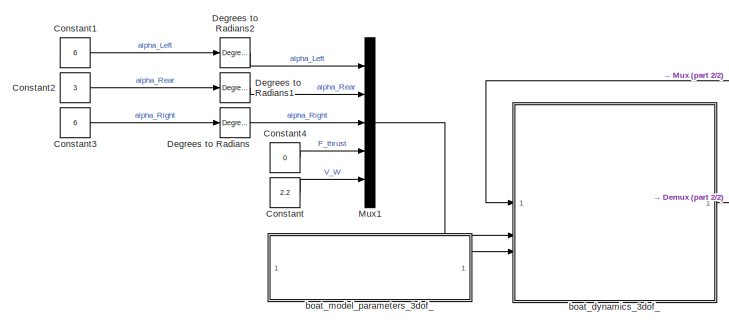
[diagram: root canvas - part 1/2, top left region]
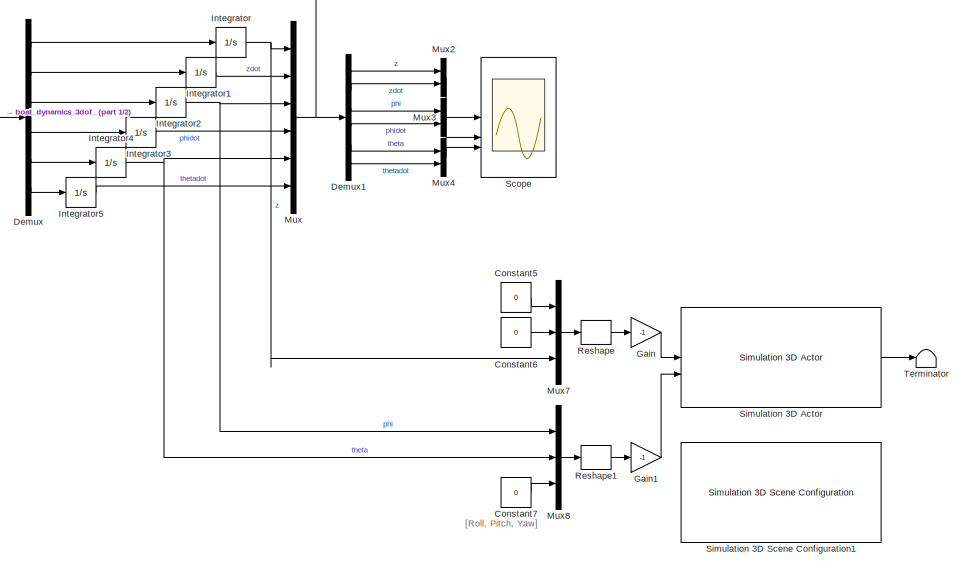
[diagram: root canvas - part 2/2, right side, full height]
MODEL slx_51006d4221be
KIND model
CONFIG AbsTol = auto
CONFIG EnableMultiTasking = off
CONFIG FixedStep = 1e-3
CONFIG MaxStep = auto
CONFIG MinStep = auto
CONFIG RelTol = 1e-3
CONFIG SampleTimeConstraint = Unconstrained
CONFIG SolverName = ode4
CONFIG StartTime = 0.0
CONFIG StopTime = 10
BLOCK [Constant] Constant
  Value = 2.2
BLOCK [Constant] Constant1
  Value = 6
BLOCK [Constant] Constant2
  Value = 3
BLOCK [Constant] Constant3
  Value = 6
BLOCK [Constant] Constant4
  Value = 0
BLOCK [Constant] Constant5
  Value = 0
BLOCK [Constant] Constant6
  Value = 0
BLOCK [Constant] Constant7
  Value = 0
BLOCK [Reference] Degrees to Radians  REF=simulink_extras/Transformations/Degrees to
Radians
  SourceBlock = simulink_extras/Transformations/Degrees to\nRadians
  SourceType = DegreesToRadians
BLOCK [Reference] Degrees to Radians1  REF=simulink_extras/Transformations/Degrees to
Radians
  SourceBlock = simulink_extras/Transformations/Degrees to\nRadians
  SourceType = DegreesToRadians
BLOCK [Reference] Degrees to Radians2  REF=simulink_extras/Transformations/Degrees to
Radians
  SourceBlock = simulink_extras/Transformations/Degrees to\nRadians
  SourceType = DegreesToRadians
BLOCK [Demux] Demux
  Outputs = 6
BLOCK [Demux] Demux1
  Outputs = 6
BLOCK [Gain] Gain
  Gain = -1
BLOCK [Gain] Gain1
  Gain = -1
BLOCK [Integrator] Integrator
BLOCK [Integrator] Integrator1
BLOCK [Integrator] Integrator2
BLOCK [Integrator] Integrator3
BLOCK [Integrator] Integrator4
BLOCK [Integrator] Integrator5
BLOCK [Mux] Mux
  DisplayOption = bar
  Inputs = 6
BLOCK [Mux] Mux1
  DisplayOption = bar
  Inputs = 5
BLOCK [Mux] Mux2
  DisplayOption = bar
  Inputs = 2
BLOCK [Mux] Mux3
  DisplayOption = bar
  Inputs = 2
BLOCK [Mux] Mux4
  DisplayOption = bar
  Inputs = 2
BLOCK [Mux] Mux7
  DisplayOption = bar
  Inputs = 3
BLOCK [Mux] Mux8
  DisplayOption = bar
  Inputs = 3
BLOCK [Reshape] Reshape
  OutputDimensionality = Row vector (2-D)
BLOCK [Reshape] Reshape1
  OutputDimensionality = Row vector (2-D)
BLOCK [Scope] Scope
  ActiveDisplayYMaximum = 2.75221448061251
  ActiveDisplayYMinimum = -2.8532722674924593
  Floating = off
  GraphicalSettings = {"Style":{"BackgroundColor":[0.12941176470588237,0.12941176470588237,0.12941176470588237],"AxesColor":[0.07058823529411765,0.07058823529411765,0.07058823529411765],"LabelsColor":[0.8509803921568627,0.8509803921568627,0.8509803921568627],"PreserveColors":false,"Visible":[true,true,true,true,true,true],"LineStyle":["-","-","-","-","-","-"],"LineWidth":[1.5,1.5,1.5,1.5,1.5,1.5],"BarWidth":[0.9,0.9,0....<+3141ch>
  LayoutDimensionsString = [3,1]
  MultipleDisplayCache = [{"MaxYLimMag":2.8532722674924593,"MaxYLimReal":2.75221448061251,"MinYLimMag":0,"MinYLimReal":-2.8532722674924593,"PlotAsMagnitudePhase":false,"ShowGrid":true,"ShowLegend":true,"Title":"%<SignalLabel>","YLabel":""},{"MaxYLimMag":7.8489985124033437,"MaxYLimReal":3.3382463109081906,"MinYLimMag":0,"MinYLimReal":-7.8489985124033437,"PlotAsMagnitudePhase":false,"ShowGrid":true,"ShowLegend":true,"Title"...<+250ch>
  NumInputPorts = 3
  ScopeFrameLocation = window
  ShowLegend = on
  Visible = on
  WasSavedAsWebScope = on
  WindowPosition = [236.000000,162.000000,1064.000000,541.000000,]
BLOCK [Reference] Simulation 3D Actor  REF=sim3dlib/Simulation 3D Actor
  LibrarySourceBlock = sl3dlib/Simulation 3D/Actors/Simulation 3D Actor
  Priority = 1
  SourceBlock = sim3dlib/Simulation 3D Actor
  SourceType = Simulation 3D Actor
BLOCK [Reference] Simulation 3D Scene Configuration1  REF=sim3dlib/Simulation 3D Scene Configuration
  LibrarySourceBlock = sl3dlib/Simulation 3D/Environment/Simulation 3D Scene Configuration
  Priority = 0
  SourceBlock = sim3dlib/Simulation 3D Scene Configuration
  SourceType = Simulation 3D Scene Configuration
BLOCK [Terminator] Terminator
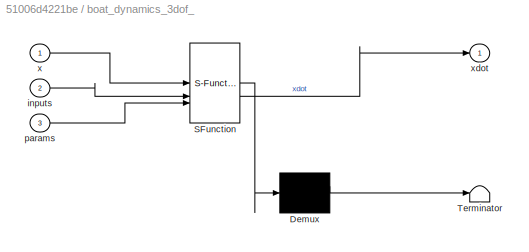
BLOCK [SubSystem] boat_dynamics_3dof_
  ErrorFcn = Stateflow.Translate.translate
  PermitHierarchicalResolution = ExplicitOnly
  SFBlockType = MATLAB Function
  TreatAsAtomicUnit = on
BLOCK [Demux] boat_dynamics_3dof_/ Demux 
  Outputs = 1
BLOCK [S-Function] boat_dynamics_3dof_/ SFunction 
  EnableBusSupport = off
  FunctionName = sf_sfun
  PortCounts = [3 2]
  SFcnIsStateOwnerBlock = off
  SFunctionDeploymentMode = off
  Tag = Stateflow S-Function 2
BLOCK [Terminator] boat_dynamics_3dof_/ Terminator 
BLOCK [Inport] boat_dynamics_3dof_/inputs
  Port = 2
BLOCK [Inport] boat_dynamics_3dof_/params
  Port = 3
BLOCK [Inport] boat_dynamics_3dof_/x
BLOCK [Outport] boat_dynamics_3dof_/xdot
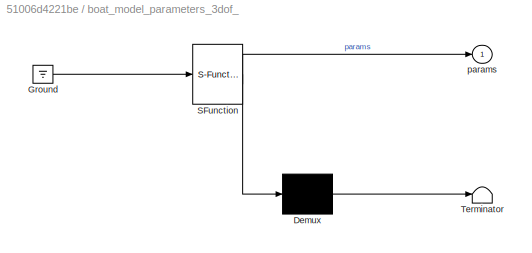
BLOCK [SubSystem] boat_model_parameters_3dof_
  ErrorFcn = Stateflow.Translate.translate
  PermitHierarchicalResolution = ExplicitOnly
  SFBlockType = MATLAB Function
  TreatAsAtomicUnit = on
BLOCK [Demux] boat_model_parameters_3dof_/ Demux 
  Outputs = 1
BLOCK [Ground] boat_model_parameters_3dof_/ Ground 
BLOCK [S-Function] boat_model_parameters_3dof_/ SFunction 
  EnableBusSupport = off
  FunctionName = sf_sfun
  PortCounts = [1 2]
  SFcnIsStateOwnerBlock = off
  SFunctionDeploymentMode = off
  Tag = Stateflow S-Function 1
BLOCK [Terminator] boat_model_parameters_3dof_/ Terminator 
BLOCK [Outport] boat_model_parameters_3dof_/params
ANNOTATION (root): [Roll, Pitch, Yaw]
LINE Constant1:1 -> Degrees to Radians2:1
LINE Constant2:1 -> Degrees to Radians1:1
LINE Constant3:1 -> Degrees to Radians:1
LINE Constant4:1 -> Mux1:4
LINE Constant5:1 -> Mux7:1
LINE Constant6:1 -> Mux7:2
LINE Constant7:1 -> Mux8:3
LINE Constant:1 -> Mux1:5
LINE Degrees to Radians1:1 -> Mux1:2
LINE Degrees to Radians2:1 -> Mux1:1
LINE Degrees to Radians:1 -> Mux1:3
LINE Demux1:1 -> Mux2:1
LINE Demux1:2 -> Mux2:2
LINE Demux1:3 -> Mux3:1
LINE Demux1:4 -> Mux3:2
LINE Demux1:5 -> Mux4:1
LINE Demux1:6 -> Mux4:2
LINE Demux:1 -> Integrator:1
LINE Demux:2 -> Integrator1:1
LINE Demux:3 -> Integrator2:1
LINE Demux:4 -> Integrator3:1
LINE Demux:5 -> Integrator4:1
LINE Demux:6 -> Integrator5:1
LINE Gain1:1 -> Simulation 3D Actor:2
LINE Gain:1 -> Simulation 3D Actor:1
LINE Integrator1:1 -> Mux:2
NET Integrator2:1 -> Mux8:1, Mux:3
LINE Integrator3:1 -> Mux:4
NET Integrator4:1 -> Mux8:2, Mux:5
LINE Integrator5:1 -> Mux:6
NET Integrator:1 -> Mux7:3, Mux:1
LINE Mux1:1 -> boat_dynamics_3dof_:2
LINE Mux2:1 -> Scope:1
LINE Mux3:1 -> Scope:2
LINE Mux4:1 -> Scope:3
LINE Mux7:1 -> Reshape:1
LINE Mux8:1 -> Reshape1:1
NET Mux:1 -> Demux1:1, boat_dynamics_3dof_:1
LINE Reshape1:1 -> Gain1:1
LINE Reshape:1 -> Gain:1
LINE Simulation 3D Actor:1 -> Terminator:1
LINE boat_dynamics_3dof_:1 -> Demux:1
LINE boat_model_parameters_3dof_:1 -> boat_dynamics_3dof_:3
note: NET lines group one-source signal fan-out (src -> all destinations, sorted); 1:1 wires keep LINE
CHART boat_dynamics_3dof_ states=1 transitions=1
  STATE_LABEL 'eML_blk_kernel()'
  STATE_LABEL 'SCRIPT:\nfunction xdot = boat_dynamics_3dof_(x, inputs, params)\n%#codegen\n    xdot = boat_dynamics_3dof(x, inputs, params);\nend'
CHART boat_model_parameters_3dof_ states=1 transitions=1
  STATE_LABEL 'eML_blk_kernel()'
  STATE_LABEL 'SCRIPT:\nfunction params = boat_model_parameters_3dof_()\n    params = boat_model_parameters_3dof();\nend\n'
CHART  states=0 transitions=0
CHART  states=0 transitions=0
